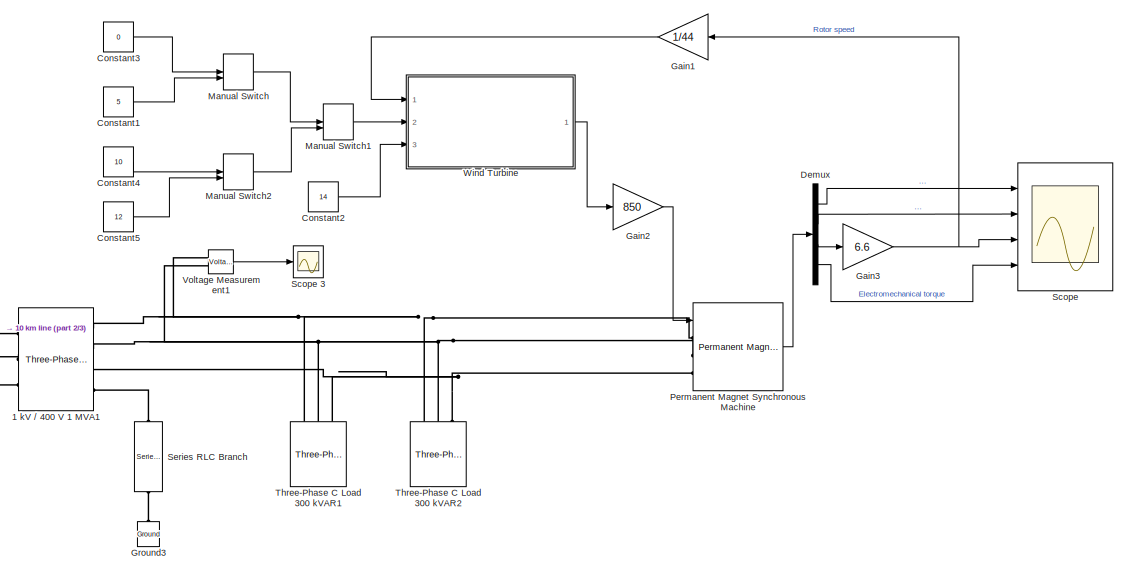
[diagram: root canvas - part 1/3, top right region]
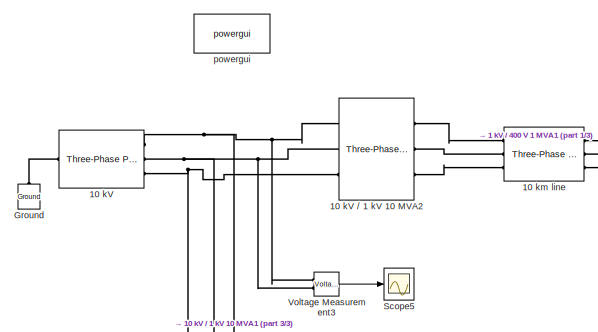
[diagram: root canvas - part 2/3, middle left region]
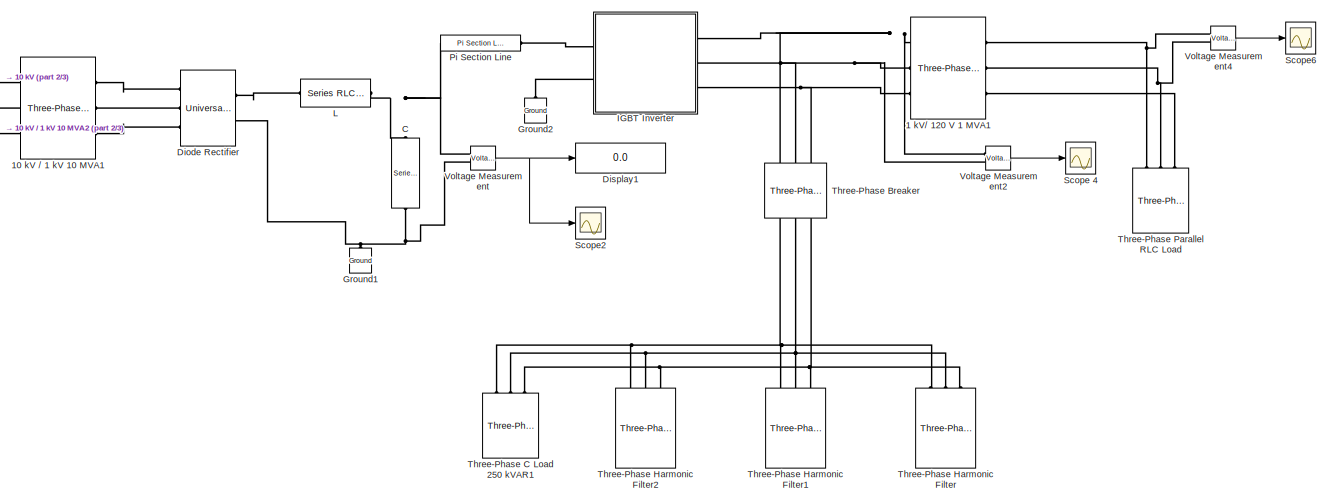
[diagram: root canvas - part 3/3, full width, bottom band]
MODEL slx_c93691e027c2
KIND model
BLOCK [Reference] 1 kV // 400 V 1 MVA1  REF=powerlib/Elements/Three-Phase
Transformer
(Two Windings)
  BreakLoop = off
  DataFile = 'hysteresis'
  DataType = on
  Hysteresis = off
  InitialFluxes = [1.5802 -1.5802 1.3827]
  Lm = 1.8386
  Measurements = None
  MoreParameters = off
  NominalPower = [ 1000e3, 50 ]
  Ports = [0, 0, 0, 0, 0, 3, 4]
  Rm = 577.6
  Saturation = [0 0;1.2892 2.3703;537.17 3.0024]
  SetInitialFlux = off
  SetSaturation = off
  SourceBlock = powerlib/Elements/Three-Phase\nTransformer\n(Two Windings)
  SourceType = Three-Phase Transformer (Two Windings)
  TransfoNumber = 1
  UNITS = SI
  Winding1 = [1000 0.0023104 0.00029417]
  Winding1Connection = Y
  Winding2 = [400 0.0017328 0.00022063]
  Winding2Connection = Yn
BLOCK [Reference] 1 kV// 120 V 1 MVA1  REF=powerlib/Elements/Three-Phase
Transformer
(Two Windings)
  BreakLoop = off
  DataFile = 'hysteresis'
  DataType = on
  Hysteresis = off
  InitialFluxes = [13.723 -13.723 12.007]
  Lm = 69.328
  Measurements = None
  MoreParameters = off
  NominalPower = [ 1000000, 50 ]
  Ports = [0, 0, 0, 0, 0, 3, 3]
  Rm = 21780
  Saturation = [0 0;0.29691 20.584;123.71 26.073]
  SetInitialFlux = off
  SetSaturation = off
  SourceBlock = powerlib/Elements/Three-Phase\nTransformer\n(Two Windings)
  SourceType = Three-Phase Transformer (Two Windings)
  TransfoNumber = 1
  UNITS = SI
  Winding1 = [1000 0.08712 0.011092]
  Winding1Connection = Yg
  Winding2 = [120 0.0008664 0.00011031]
  Winding2Connection = Y
BLOCK [Reference] 10 kV  REF=powerlib/Electrical
Sources/Three-Phase
Programmable
Voltage Source
  Amplitudes = [1 0.8 1.2 1.0]
  BusType = swing
  HarmonicA = [3 0.2 -25 0]
  HarmonicB = [2 0.15 35 2]
  HarmonicGeneration = off
  Ports = [0, 0, 0, 0, 0, 1, 3]
  PositiveSequence = [10000  0 50]
  Pref = 0
  Qmax = inf
  Qmin = -inf
  Qref = 0
  SourceBlock = powerlib/Electrical\nSources/Three-Phase\nProgrammable\nVoltage Source
  SourceType = Three-Phase Programmable Voltage Source
  TimeValues = [0 0.1 0.15 0.2]
  Timing = [0.05  3]
  VariationEntity = None
  VariationFrequency = 2
  VariationMagnitude = 0.3
  VariationPhaseA = off
  VariationRate = 10
  VariationStep = 0.5
  VariationTiming = [1 2]
  VariationType = Table of time-amplitude pairs
  VariationTypeAlt = Step
BLOCK [Reference] 10 kV // 1 kV 10 MVA1  REF=powerlib/Elements/Three-Phase
Transformer
(Two Windings)
  BreakLoop = off
  DataFile = 'hysteresis'
  DataType = on
  Hysteresis = off
  InitialFluxes = [1.5802 -1.5802 1.3827]
  Lm = 1.8386
  Measurements = None
  MoreParameters = off
  NominalPower = [ 10e6, 50 ]
  Ports = [0, 0, 0, 0, 0, 3, 3]
  Rm = 577.6
  Saturation = [0 0;1.2892 2.3703;537.17 3.0024]
  SetInitialFlux = off
  SetSaturation = off
  SourceBlock = powerlib/Elements/Three-Phase\nTransformer\n(Two Windings)
  SourceType = Three-Phase Transformer (Two Windings)
  TransfoNumber = 1
  UNITS = SI
  Winding1 = [10000 0.0023104 0.00029417]
  Winding1Connection = Y
  Winding2 = [1000 0.0017328 0.00022063]
  Winding2Connection = Y
BLOCK [Reference] 10 kV // 1 kV 10 MVA2  REF=powerlib/Elements/Three-Phase
Transformer
(Two Windings)
  BreakLoop = off
  DataFile = 'hysteresis'
  DataType = on
  Hysteresis = off
  InitialFluxes = [1.5802 -1.5802 1.3827]
  Lm = 1.8386
  Measurements = None
  MoreParameters = off
  NominalPower = [ 10e6, 50 ]
  Ports = [0, 0, 0, 0, 0, 3, 3]
  Rm = 577.6
  Saturation = [0 0;1.2892 2.3703;537.17 3.0024]
  SetInitialFlux = off
  SetSaturation = off
  SourceBlock = powerlib/Elements/Three-Phase\nTransformer\n(Two Windings)
  SourceType = Three-Phase Transformer (Two Windings)
  TransfoNumber = 1
  UNITS = SI
  Winding1 = [10000 0.0023104 0.00029417]
  Winding1Connection = Y
  Winding2 = [1000 0.0017328 0.00022063]
  Winding2Connection = Y
BLOCK [Reference] 10 km line   REF=powerlib/Elements/Three-Phase
PI Section Line
  AttributesFormatString = \n
  Capacitances = [12.74e-9 7.751e-9]
  Frequency = 50
  Inductances = [ 0.9337e-3  4.1264e-3]
  LConnTagsString = a|b|c
  Length = 100
  Ports = [0, 0, 0, 0, 0, 3, 3]
  RConnTagsString = A|B|C
  Resistances = [ 0.01273 0.3864]
  SourceBlock = powerlib/Elements/Three-Phase\nPI Section Line
  SourceType = Three-Phase PI Section Line
BLOCK [Reference] C  REF=powerlib/Elements/Series RLC Branch
  BranchType = C
  Capacitance = 0.01
  Inductance = 1e-3
  InitialCurrent = 0
  InitialVoltage = 0
  LConnTagsString = __new0
  Measurements = None
  Ports = [0, 0, 0, 0, 0, 1, 1]
  RConnTagsString = __new0
  Resistance = 1
  SetiL0 = off
  Setx0 = off
  SourceBlock = powerlib/Elements/Series RLC Branch
  SourceType = Series RLC Branch
BLOCK [Constant] Constant1
  Value = 5
BLOCK [Constant] Constant2
  Value = 14
BLOCK [Constant] Constant3
  Value = 0
BLOCK [Constant] Constant4
  Value = 10
BLOCK [Constant] Constant5
  Value = 12
BLOCK [Demux] Demux
  DisplayOption = bar
  Ports = [1, 4]
BLOCK [Reference] Diode Rectifier  REF=powerlib/Power
Electronics/Universal Bridge
  Arms = 3
  Device = Diodes
  ForwardVoltage = 0
  ForwardVoltages = [  0  0  ]
  GTOparameters = [ 10e-6 , 20e-6 ]
  IGBTparameters = [ 1e-6 , 2e-6 ]
  Lon = 0
  Measurements = None
  Measurements_2 = None
  Ports = [0, 0, 0, 0, 0, 3, 2]
  Ron = 1e-3
  SnubberCapacitance = inf
  SnubberResistance = 1e5
  SourceBlock = powerlib/Power\nElectronics/Universal Bridge
  SourceType = Universal Bridge
  converterType = Rectifier
BLOCK [Display] Display1
  Decimation = 1
  Lockdown = off
  Ports = [1]
BLOCK [Gain] Gain1
  Gain = 1/44
  OutDataTypeStr = Inherit: Inherit via internal rule
  ParamDataTypeStr = Inherit: Inherit via internal rule
  SaturateOnIntegerOverflow = off
BLOCK [Gain] Gain2
  Gain = 850
  OutDataTypeStr = Inherit: Inherit via internal rule
  ParamDataTypeStr = Inherit: Inherit via internal rule
  SaturateOnIntegerOverflow = off
BLOCK [Gain] Gain3
  Gain = 6.6
  OutDataTypeStr = Inherit: Inherit via internal rule
  ParamDataTypeStr = Inherit: Inherit via internal rule
  SaturateOnIntegerOverflow = off
BLOCK [Reference] Ground  REF=powerlib/Elements/Ground
  LConnTagsString = a
  Ports = [0, 0, 0, 0, 0, 1]
  SourceBlock = powerlib/Elements/Ground
  SourceType = Ground
BLOCK [Reference] Ground1  REF=powerlib/Elements/Ground
  LConnTagsString = a
  Ports = [0, 0, 0, 0, 0, 1]
  SourceBlock = powerlib/Elements/Ground
  SourceType = Ground
BLOCK [Reference] Ground2  REF=powerlib/Elements/Ground
  LConnTagsString = a
  Ports = [0, 0, 0, 0, 0, 1]
  SourceBlock = powerlib/Elements/Ground
  SourceType = Ground
BLOCK [Reference] Ground3  REF=powerlib/Elements/Ground
  LConnTagsString = a
  Ports = [0, 0, 0, 0, 0, 1]
  SourceBlock = powerlib/Elements/Ground
  SourceType = Ground
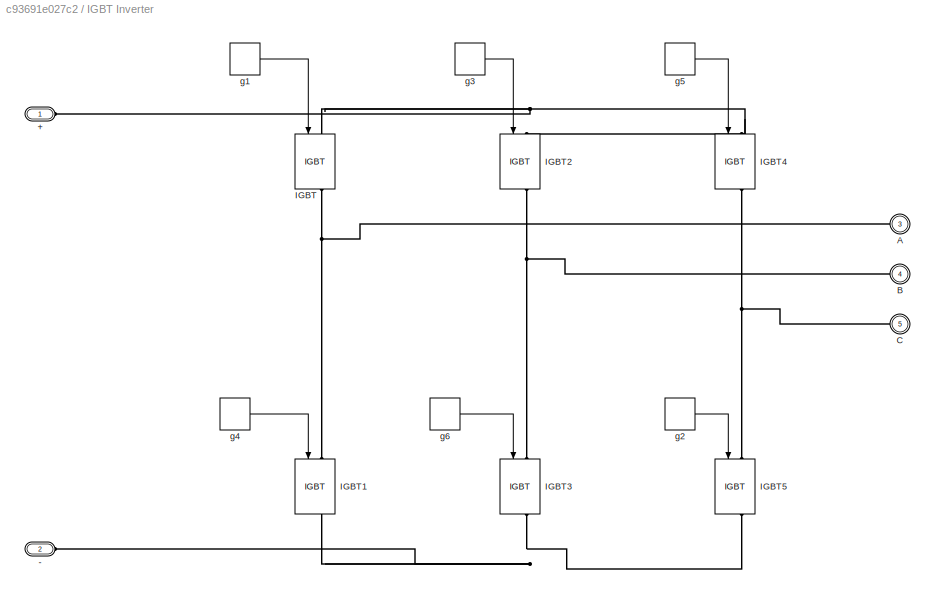
BLOCK [SubSystem] IGBT Inverter
  FunctionWithSeparateData = off
  MaskHideContents = off
  MinAlgLoopOccurrences = off
  Opaque = off
  Ports = [0, 0, 0, 0, 0, 2, 3]
  PropExecContextOutsideSubsystem = off
  RTWSystemCode = Auto
  RequestExecContextInheritance = off
BLOCK [PMIOPort] IGBT Inverter/+
  Port = 1
  Side = Left
BLOCK [PMIOPort] IGBT Inverter/-
  Port = 2
  Side = Left
BLOCK [PMIOPort] IGBT Inverter/A
  Port = 3
  Side = Right
BLOCK [PMIOPort] IGBT Inverter/B
  Port = 4
  Side = Right
BLOCK [PMIOPort] IGBT Inverter/C
  Port = 5
  Side = Right
BLOCK [Reference] IGBT Inverter/IGBT  REF=powerlib/Power
Electronics/IGBT
  Cs = inf
  IC = 0
  Lon = 0
  Measurements = on
  Ports = [1, 1, 0, 0, 0, 1, 1]
  Ron = 0.001
  Rs = 1e5
  SourceBlock = powerlib/Power\nElectronics/IGBT
  SourceType = IGBT
  Tf = 1e-6
  Tt = 2e-6
  Vf = 1
BLOCK [Reference] IGBT Inverter/IGBT1  REF=powerlib/Power
Electronics/IGBT
  Cs = inf
  IC = 0
  Lon = 0
  Measurements = on
  Ports = [1, 1, 0, 0, 0, 1, 1]
  Ron = 0.001
  Rs = 1e5
  SourceBlock = powerlib/Power\nElectronics/IGBT
  SourceType = IGBT
  Tf = 1e-6
  Tt = 2e-6
  Vf = 1
BLOCK [Reference] IGBT Inverter/IGBT2  REF=powerlib/Power
Electronics/IGBT
  Cs = inf
  IC = 0
  Lon = 0
  Measurements = on
  Ports = [1, 1, 0, 0, 0, 1, 1]
  Ron = 0.001
  Rs = 1e5
  SourceBlock = powerlib/Power\nElectronics/IGBT
  SourceType = IGBT
  Tf = 1e-6
  Tt = 2e-6
  Vf = 1
BLOCK [Reference] IGBT Inverter/IGBT3  REF=powerlib/Power
Electronics/IGBT
  Cs = inf
  IC = 0
  Lon = 0
  Measurements = on
  Ports = [1, 1, 0, 0, 0, 1, 1]
  Ron = 0.001
  Rs = 1e5
  SourceBlock = powerlib/Power\nElectronics/IGBT
  SourceType = IGBT
  Tf = 1e-6
  Tt = 2e-6
  Vf = 1
BLOCK [Reference] IGBT Inverter/IGBT4  REF=powerlib/Power
Electronics/IGBT
  Cs = inf
  IC = 0
  Lon = 0
  Measurements = on
  Ports = [1, 1, 0, 0, 0, 1, 1]
  Ron = 0.001
  Rs = 1e5
  SourceBlock = powerlib/Power\nElectronics/IGBT
  SourceType = IGBT
  Tf = 1e-6
  Tt = 2e-6
  Vf = 1
BLOCK [Reference] IGBT Inverter/IGBT5  REF=powerlib/Power
Electronics/IGBT
  Cs = inf
  IC = 0
  Lon = 0
  Measurements = on
  Ports = [1, 1, 0, 0, 0, 1, 1]
  Ron = 0.001
  Rs = 1e5
  SourceBlock = powerlib/Power\nElectronics/IGBT
  SourceType = IGBT
  Tf = 1e-6
  Tt = 2e-6
  Vf = 1
BLOCK [DiscretePulseGenerator] IGBT Inverter/g1
  Period = 0.02
  Ports = [0, 1]
  PulseType = Time based
  PulseWidth = 50
BLOCK [DiscretePulseGenerator] IGBT Inverter/g2
  Period = 0.02
  PhaseDelay = 0.0033
  Ports = [0, 1]
  PulseType = Time based
  PulseWidth = 50
BLOCK [DiscretePulseGenerator] IGBT Inverter/g3
  Period = 0.02
  PhaseDelay = 0.0067
  Ports = [0, 1]
  PulseType = Time based
  PulseWidth = 50
BLOCK [DiscretePulseGenerator] IGBT Inverter/g4
  Period = 0.02
  PhaseDelay = 0.01
  Ports = [0, 1]
  PulseType = Time based
  PulseWidth = 50
BLOCK [DiscretePulseGenerator] IGBT Inverter/g5
  Period = 0.02
  PhaseDelay = 0.0133
  Ports = [0, 1]
  PulseType = Time based
  PulseWidth = 50
BLOCK [DiscretePulseGenerator] IGBT Inverter/g6
  Period = 0.02
  PhaseDelay = 0.0167
  Ports = [0, 1]
  PulseType = Time based
  PulseWidth = 50
BLOCK [Reference] L  REF=powerlib/Elements/Series RLC Branch
  BranchType = L
  Capacitance = 1e-6
  Inductance = 3.8e-3
  InitialCurrent = 0
  InitialVoltage = 0
  LConnTagsString = __new0
  Measurements = None
  Ports = [0, 0, 0, 0, 0, 1, 1]
  RConnTagsString = __new0
  Resistance = 1
  SetiL0 = off
  Setx0 = off
  SourceBlock = powerlib/Elements/Series RLC Branch
  SourceType = Series RLC Branch
BLOCK [ManualSwitch] Manual Switch
  CurrentSetting = 0
BLOCK [ManualSwitch] Manual Switch1
BLOCK [ManualSwitch] Manual Switch2
  CurrentSetting = 0
BLOCK [Reference] Permanent Magnet Synchronous Machine  REF=powerlib/Machines/Permanent Magnet
Synchronous Machine
  Flat = 120
  Flux = 0.1688
  FluxDistribution = Sinusoidal
  Inductance = 8.5e-3
  InitialConditions = [0,0, 0,0]
  InitialConditions5ph = [0 0 0 0 0 0]
  La = 0.000975
  MachineConstant = Flux linkage established by magnets (V.s)
  Mechanical = [0.003945 0.0004924 4 0]
  MechanicalLoad = Torque Tm
  NbPhases = 3
  PolePairs = 4
  Ports = [1, 1, 0, 0, 0, 3]
  PresetModel = No
  RefAngle = 90 degrees behind phase A axis (modified Park)
  Resistance = 0.0918
  RotorType = Round
  ShowDetailedParameters = on
  SourceBlock = powerlib/Machines/Permanent Magnet\nSynchronous Machine
  SourceType = Permanent Magnet Synchronous Machine
  TorqueCst = 1.0128
  TsBlock = -1
  TsPowergui = 0
  VoltageCst = 122.4677
  dqInductances = [8.5e-3,8.5e-3]
BLOCK [Reference] Pi Section Line  REF=powerlib/Elements/Pi Section Line
  AttributesFormatString = \n
  Capacitance = 12.74e-9
  Frequency = 50
  Inductance = 0.9337e-3
  LConnTagsString = __new0
  Length = 10
  Measurements = None
  PiSections = 1
  Ports = [0, 0, 0, 0, 0, 1, 1]
  RConnTagsString = __new0
  Resistance = 0.01273
  SourceBlock = powerlib/Elements/Pi Section Line
  SourceType = Pi Section Line
BLOCK [Scope] Scope
  DataFormat = StructureWithTime
  Floating = off
  LimitDataPoints = off
  NumInputPorts = 4
  Ports = [4]
  SampleTime = 0
  ShowLegends = off
  YMax = 50000~100000~5~5
  YMin = -50000~-100000~-5~-5
BLOCK [Scope] Scope 3
  DataFormat = StructureWithTime
  Floating = off
  LimitDataPoints = off
  NumInputPorts = 1
  Ports = [1]
  SampleTime = 0
  SaveName = ScopeData3
  ShowLegends = off
BLOCK [Scope] Scope 4
  DataFormat = StructureWithTime
  Floating = off
  LimitDataPoints = off
  NumInputPorts = 1
  Ports = [1]
  SampleTime = 0
  SaveName = ScopeData4
  ShowLegends = off
BLOCK [Scope] Scope2
  DataFormat = StructureWithTime
  Floating = off
  LimitDataPoints = off
  NumInputPorts = 1
  Ports = [1]
  SampleTime = 0
  SaveName = ScopeData2
  ShowLegends = off
BLOCK [Scope] Scope5
  DataFormat = StructureWithTime
  Floating = off
  LimitDataPoints = off
  NumInputPorts = 1
  Ports = [1]
  SampleTime = 0
  SaveName = ScopeData5
  ShowLegends = off
BLOCK [Scope] Scope6
  DataFormat = StructureWithTime
  Floating = off
  LimitDataPoints = off
  NumInputPorts = 1
  Ports = [1]
  SampleTime = 0
  SaveName = ScopeData6
  ShowLegends = off
BLOCK [Reference] Series RLC Branch  REF=powerlib/Elements/Series RLC Branch
  BranchType = R
  Capacitance = 1e-6
  Inductance = 1e-3
  InitialCurrent = 0
  InitialVoltage = 0
  LConnTagsString = __new0
  Measurements = None
  Ports = [0, 0, 0, 0, 0, 1, 1]
  RConnTagsString = __new0
  Resistance = 66
  SetiL0 = off
  Setx0 = off
  SourceBlock = powerlib/Elements/Series RLC Branch
  SourceType = Series RLC Branch
BLOCK [Reference] Three-Phase Breaker  REF=powerlib/Elements/Three-Phase Breaker
  BreakerResistance = 0.001
  External = off
  InitialState = closed
  Measurements = None
  Ports = [0, 0, 0, 0, 0, 3, 3]
  SnubberCapacitance = inf
  SnubberResistance = 1e6
  SourceBlock = powerlib/Elements/Three-Phase Breaker
  SourceType = Three-Phase Breaker
  SwitchA = on
  SwitchB = on
  SwitchC = on
  SwitchTimes = [4/60  10/60]
BLOCK [Reference] Three-Phase C Load 250 kVAR1  REF=powerlib/Elements/Three-Phase
Series RLC Load
  ActivePower = 0
  AttributesFormatString = \n
  CapacitivePower = 500000
  Configuration = Y (grounded)
  InductivePower = 0
  LConnTagsString = A|B|C
  LoadType = constant Z
  Measurements = None
  NominalFrequency = 50
  NominalVoltage = 1000
  Ports = [0, 0, 0, 0, 0, 3]
  SourceBlock = powerlib/Elements/Three-Phase\nSeries RLC Load
  SourceType = Three-Phase Series RLC Load
BLOCK [Reference] Three-Phase C Load 300 kVAR1  REF=powerlib/Elements/Three-Phase
Series RLC Load
  ActivePower = 0
  AttributesFormatString = \n
  CapacitivePower = 300e3
  Configuration = Y (floating)
  InductivePower = 0
  LConnTagsString = A|B|C
  LoadType = constant Z
  Measurements = None
  NominalFrequency = 50
  NominalVoltage = 380
  Ports = [0, 0, 0, 0, 0, 3]
  SourceBlock = powerlib/Elements/Three-Phase\nSeries RLC Load
  SourceType = Three-Phase Series RLC Load
BLOCK [Reference] Three-Phase C Load 300 kVAR2  REF=powerlib/Elements/Three-Phase
Series RLC Load
  ActivePower = 0
  AttributesFormatString = \n
  CapacitivePower = 300e3
  Configuration = Y (floating)
  InductivePower = 0
  LConnTagsString = A|B|C
  LoadType = constant Z
  Measurements = None
  NominalFrequency = 50
  NominalVoltage = 380
  Ports = [0, 0, 0, 0, 0, 3]
  SourceBlock = powerlib/Elements/Three-Phase\nSeries RLC Load
  SourceType = Three-Phase Series RLC Load
BLOCK [Reference] Three-Phase Harmonic Filter  REF=powerlib/Elements/Three-Phase
Harmonic Filter
  AttributesFormatString = \n
  FilterConnection = Y (grounded)
  FilterType = Double-tuned
  Fr = [5*60]
  Frd = [11*50 13*50]
  LConnTagsString = A|B|C
  Measurements = None
  ParNom = [1000 50]
  Ports = [0, 0, 0, 0, 0, 3]
  Q = 16
  Qc = 500000
  SourceBlock = powerlib/Elements/Three-Phase\nHarmonic Filter
  SourceType = Three-Phase Harmonic Filter
BLOCK [Reference] Three-Phase Harmonic Filter1  REF=powerlib/Elements/Three-Phase
Harmonic Filter
  AttributesFormatString = \n
  FilterConnection = Y (grounded)
  FilterType = C-type High-pass
  Fr = [3*50]
  Frd = [11*50 13*50]
  LConnTagsString = A|B|C
  Measurements = None
  ParNom = [1000 50]
  Ports = [0, 0, 0, 0, 0, 3]
  Q = 16
  Qc = 500000
  SourceBlock = powerlib/Elements/Three-Phase\nHarmonic Filter
  SourceType = Three-Phase Harmonic Filter
BLOCK [Reference] Three-Phase Harmonic Filter2  REF=powerlib/Elements/Three-Phase
Harmonic Filter
  AttributesFormatString = \n
  FilterConnection = Y (grounded)
  FilterType = High-pass
  Fr = [24*50]
  Frd = [11*50 13*50]
  LConnTagsString = A|B|C
  Measurements = None
  ParNom = [1000 50]
  Ports = [0, 0, 0, 0, 0, 3]
  Q = 16
  Qc = 500000
  SourceBlock = powerlib/Elements/Three-Phase\nHarmonic Filter
  SourceType = Three-Phase Harmonic Filter
BLOCK [Reference] Three-Phase Parallel RLC Load  REF=powerlib/Elements/Three-Phase
Parallel RLC Load
  ActivePower = 50e3
  AttributesFormatString = \n
  CapacitivePower = 500
  Configuration = Y (grounded)
  InductivePower = 600
  LConnTagsString = A|B|C
  LoadType = constant Z
  Measurements = None
  NominalFrequency = 50
  NominalVoltage = 380
  Ports = [0, 0, 0, 0, 0, 3]
  SourceBlock = powerlib/Elements/Three-Phase\nParallel RLC Load
  SourceType = Three-Phase Parallel RLC Load
BLOCK [Reference] Voltage Measurement  REF=powerlib/Measurements/Voltage Measurement
  OutputType = Complex
  PSBequivalent = 0
  PhasorSimulation = off
  Ports = [0, 1, 0, 0, 0, 2]
  SourceBlock = powerlib/Measurements/Voltage Measurement
  SourceType = Voltage Measurement
BLOCK [Reference] Voltage Measurement1  REF=powerlib/Measurements/Voltage Measurement
  OutputType = Complex
  PSBequivalent = 0
  PhasorSimulation = off
  Ports = [0, 1, 0, 0, 0, 2]
  SourceBlock = powerlib/Measurements/Voltage Measurement
  SourceType = Voltage Measurement
BLOCK [Reference] Voltage Measurement2  REF=powerlib/Measurements/Voltage Measurement
  OutputType = Complex
  PSBequivalent = 0
  PhasorSimulation = off
  Ports = [0, 1, 0, 0, 0, 2]
  SourceBlock = powerlib/Measurements/Voltage Measurement
  SourceType = Voltage Measurement
BLOCK [Reference] Voltage Measurement3  REF=powerlib/Measurements/Voltage Measurement
  OutputType = Complex
  PSBequivalent = 0
  PhasorSimulation = off
  Ports = [0, 1, 0, 0, 0, 2]
  SourceBlock = powerlib/Measurements/Voltage Measurement
  SourceType = Voltage Measurement
BLOCK [Reference] Voltage Measurement4  REF=powerlib/Measurements/Voltage Measurement
  OutputType = Complex
  PSBequivalent = 0
  PhasorSimulation = off
  Ports = [0, 1, 0, 0, 0, 2]
  SourceBlock = powerlib/Measurements/Voltage Measurement
  SourceType = Voltage Measurement
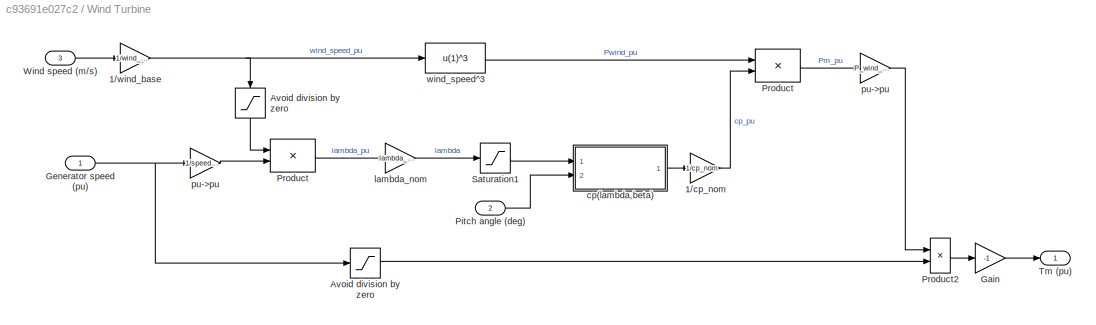
BLOCK [SubSystem] Wind Turbine
  DialogController = POWERSYS.PowerSysDialog
  FunctionWithSeparateData = off
  MaskHideContents = off
  MinAlgLoopOccurrences = off
  Opaque = off
  Ports = [3, 1]
  PropExecContextOutsideSubsystem = off
  RTWSystemCode = Auto
  RequestExecContextInheritance = off
BLOCK [Gain] Wind Turbine/1//cp_nom
  Gain = 1/cp_nom
BLOCK [Gain] Wind Turbine/1//wind_base
  Gain = 1/wind_base
BLOCK [Saturate] Wind Turbine/Avoid division by zero
  InputPortMap = u0
  LowerLimit = 1e-6
  Ports = [1, 1]
  UpperLimit = 1e6
BLOCK [Saturate] Wind Turbine/Avoid division by zero 
  InputPortMap = u0
  LowerLimit = 1e-6
  Ports = [1, 1]
  UpperLimit = 1e6
BLOCK [Gain] Wind Turbine/Gain
  Gain = -1
BLOCK [Inport] Wind Turbine/Generator speed (pu)
  IconDisplay = Port number
BLOCK [Inport] Wind Turbine/Pitch angle (deg)
  IconDisplay = Port number
  Port = 2
BLOCK [Product] Wind Turbine/Product
  InputSameDT = off
  Inputs = /*
  Ports = [2, 1]
  RndMeth = Floor
BLOCK [Product] Wind Turbine/Product 
  InputSameDT = off
  Ports = [2, 1]
  RndMeth = Floor
BLOCK [Product] Wind Turbine/Product2
  Inputs = */
  Ports = [2, 1]
  RndMeth = Floor
BLOCK [Saturate] Wind Turbine/Saturation1
  InputPortMap = u0
  LowerLimit = 1e-6
  Ports = [1, 1]
  UpperLimit = inf
BLOCK [Outport] Wind Turbine/Tm (pu)
  IconDisplay = Port number
BLOCK [Inport] Wind Turbine/Wind speed (m//s)
  IconDisplay = Port number
  Port = 3
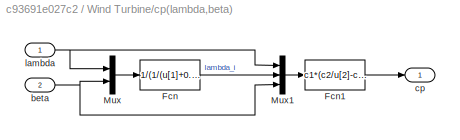
BLOCK [SubSystem] Wind Turbine/cp(lambda,beta)
  FunctionWithSeparateData = off
  MaskHideContents = off
  MinAlgLoopOccurrences = off
  Opaque = off
  Ports = [2, 1]
  PropExecContextOutsideSubsystem = off
  RTWSystemCode = Auto
  RequestExecContextInheritance = off
BLOCK [Fcn] Wind Turbine/cp(lambda,beta)/Fcn
  Expr = 1/(1/(u[1]+0.08*u[2])-0.035/(u[2]^3+1))
BLOCK [Fcn] Wind Turbine/cp(lambda,beta)/Fcn1
  Expr = c1*(c2/u[2]-c3*u[3]-c4)*exp(-c5/u[2])+c6*u[1]
BLOCK [Mux] Wind Turbine/cp(lambda,beta)/Mux
  DisplayOption = bar
  Inputs = 2
  Ports = [2, 1]
BLOCK [Mux] Wind Turbine/cp(lambda,beta)/Mux1
  DisplayOption = bar
  Inputs = 3
  Ports = [3, 1]
BLOCK [Inport] Wind Turbine/cp(lambda,beta)/beta
  IconDisplay = Port number
  Port = 2
BLOCK [Outport] Wind Turbine/cp(lambda,beta)/cp
  IconDisplay = Port number
BLOCK [Inport] Wind Turbine/cp(lambda,beta)/lambda
  IconDisplay = Port number
BLOCK [Gain] Wind Turbine/lambda_nom
  Gain = lambda_nom
BLOCK [Gain] Wind Turbine/pu->pu
  Gain = P_wind_base*Pnom/Pelec_base
BLOCK [Gain] Wind Turbine/pu->pu 
  Gain = 1/speed_nom
BLOCK [Fcn] Wind Turbine/wind_speed^3
  Expr = u(1)^3
BLOCK [Reference] powergui  REF=powerlib/powergui
  DisableRonSwitches = off
  DisableSnubberDevices = off
  DisableVfSwitches = off
  DisplayEquations = off
  DisplayStyle = 1
  EnableUseOfTLC = off
  ErrMax = 1e-4
  Frange = [0:2:500]
  FreqAxis = off
  FunctionMessages = on
  HookPort = off
  Interpol = off
  Iterations = 50
  MaxFrequency = 1000
  Pbase = 100e6
  Ports = []
  Priority = 1
  ResistiveCurrentMeasurement = off
  RestoreLinks = warning
  RmsSteady = 1
  SPID = off
  SampleTime = 250e-6
  ShowGrid = off
  SolverType = Tustin
  SourceBlock = powerlib/powergui
  SourceType = PSB option menu block
  StartTime = 0.0
  SwTol = 0
  Ts = 0
  UnitsV = kV
  UnitsW = MW
  UserDataPersistent = on
  Xlog = on
  Ylog = off
  ZoomFFT = off
  cycles = 1
  display = off
  echomessages = off
  frequency = 60
  frequencyindice = 50
  frequencyindicesteady = 1
  fundamental = 60
  methode = off
  save = off
  variable = ZData
  x0status = blocks
LINE Constant1:1 -> Manual Switch:2
LINE Constant2:1 -> Wind Turbine:3
LINE Constant3:1 -> Manual Switch:1
LINE Constant4:1 -> Manual Switch2:1
LINE Constant5:1 -> Manual Switch2:2
LINE Demux:1 -> Scope:1
LINE Demux:2 -> Scope:2
LINE Demux:3 -> Gain3:1
LINE Demux:4 -> Scope:4
LINE Gain1:1 -> Wind Turbine:1
LINE Gain2:1 -> Permanent Magnet Synchronous Machine:1
NET Gain3:1 -> Gain1:1, Scope:3
LINE IGBT Inverter/g1:1 -> IGBT Inverter/IGBT:1
LINE IGBT Inverter/g2:1 -> IGBT Inverter/IGBT5:1
LINE IGBT Inverter/g3:1 -> IGBT Inverter/IGBT2:1
LINE IGBT Inverter/g4:1 -> IGBT Inverter/IGBT1:1
LINE IGBT Inverter/g5:1 -> IGBT Inverter/IGBT4:1
LINE IGBT Inverter/g6:1 -> IGBT Inverter/IGBT3:1
LINE Manual Switch1:1 -> Wind Turbine:2
LINE Manual Switch2:1 -> Manual Switch1:2
LINE Manual Switch:1 -> Manual Switch1:1
LINE Permanent Magnet Synchronous Machine:1 -> Demux:1
LINE Voltage Measurement1:1 -> Scope 3:1
LINE Voltage Measurement2:1 -> Scope 4:1
LINE Voltage Measurement3:1 -> Scope5:1
LINE Voltage Measurement4:1 -> Scope6:1
NET Voltage Measurement:1 -> Display1:1, Scope2:1
LINE Wind Turbine:1 -> Gain2:1
PLINE 1 kV // 400 V 1 MVA1:LConn1 -- 10 km line :RConn1
PLINE 1 kV // 400 V 1 MVA1:LConn2 -- 10 km line :RConn2
PLINE 1 kV // 400 V 1 MVA1:LConn3 -- 10 km line :RConn3
PNET net1: 1 kV // 400 V 1 MVA1:RConn1 -- Permanent Magnet Synchronous Machine:LConn1 -- Three-Phase C Load 300 kVAR1:LConn1 -- Three-Phase C Load 300 kVAR2:LConn1 -- Voltage Measurement1:LConn1
PNET net2: 1 kV // 400 V 1 MVA1:RConn2 -- Permanent Magnet Synchronous Machine:LConn2 -- Three-Phase C Load 300 kVAR1:LConn2 -- Three-Phase C Load 300 kVAR2:LConn2 -- Voltage Measurement1:LConn2
PNET net3: 1 kV // 400 V 1 MVA1:RConn3 -- Permanent Magnet Synchronous Machine:LConn3 -- Three-Phase C Load 300 kVAR1:LConn3 -- Three-Phase C Load 300 kVAR2:LConn3
PLINE 1 kV // 400 V 1 MVA1:RConn4 -- Series RLC Branch:LConn1
PNET net4: 1 kV// 120 V 1 MVA1:LConn1 -- IGBT Inverter:RConn1 -- Three-Phase Breaker:LConn1 -- Voltage Measurement2:LConn1
PNET net5: 1 kV// 120 V 1 MVA1:LConn2 -- IGBT Inverter:RConn2 -- Three-Phase Breaker:LConn2 -- Voltage Measurement2:LConn2
PNET net6: 1 kV// 120 V 1 MVA1:LConn3 -- IGBT Inverter:RConn3 -- Three-Phase Breaker:LConn3
PNET net7: 1 kV// 120 V 1 MVA1:RConn1 -- Three-Phase Parallel RLC Load:LConn1 -- Voltage Measurement4:LConn1
PNET net8: 1 kV// 120 V 1 MVA1:RConn2 -- Three-Phase Parallel RLC Load:LConn2 -- Voltage Measurement4:LConn2
PLINE 1 kV// 120 V 1 MVA1:RConn3 -- Three-Phase Parallel RLC Load:LConn3
PNET net9: 10 kV // 1 kV 10 MVA1:LConn1 -- 10 kV // 1 kV 10 MVA2:LConn1 -- 10 kV:RConn1 -- Voltage Measurement3:LConn1
PNET net10: 10 kV // 1 kV 10 MVA1:LConn2 -- 10 kV // 1 kV 10 MVA2:LConn2 -- 10 kV:RConn2 -- Voltage Measurement3:LConn2
PNET net11: 10 kV // 1 kV 10 MVA1:LConn3 -- 10 kV // 1 kV 10 MVA2:LConn3 -- 10 kV:RConn3
PLINE 10 kV // 1 kV 10 MVA1:RConn1 -- Diode Rectifier:LConn1
PLINE 10 kV // 1 kV 10 MVA1:RConn2 -- Diode Rectifier:LConn2
PLINE 10 kV // 1 kV 10 MVA1:RConn3 -- Diode Rectifier:LConn3
PLINE 10 kV // 1 kV 10 MVA2:RConn1 -- 10 km line :LConn1
PLINE 10 kV // 1 kV 10 MVA2:RConn2 -- 10 km line :LConn2
PLINE 10 kV // 1 kV 10 MVA2:RConn3 -- 10 km line :LConn3
PLINE 10 kV:LConn1 -- Ground:LConn1
PNET net12: C:LConn1 -- L:RConn1 -- Pi Section Line:LConn1 -- Voltage Measurement:LConn1
PNET net13: C:RConn1 -- Diode Rectifier:RConn2 -- Ground1:LConn1 -- Voltage Measurement:LConn2
PLINE Diode Rectifier:RConn1 -- L:LConn1
PLINE Ground2:LConn1 -- IGBT Inverter:LConn2
PLINE Ground3:LConn1 -- Series RLC Branch:RConn1
PNET net14: IGBT Inverter/+:RConn1 -- IGBT Inverter/IGBT2:LConn1 -- IGBT Inverter/IGBT4:LConn1 -- IGBT Inverter/IGBT:LConn1
PNET net15: IGBT Inverter/-:RConn1 -- IGBT Inverter/IGBT1:RConn1 -- IGBT Inverter/IGBT3:RConn1 -- IGBT Inverter/IGBT5:RConn1
PNET net16: IGBT Inverter/A:RConn1 -- IGBT Inverter/IGBT1:LConn1 -- IGBT Inverter/IGBT:RConn1
PNET net17: IGBT Inverter/B:RConn1 -- IGBT Inverter/IGBT2:RConn1 -- IGBT Inverter/IGBT3:LConn1
PNET net18: IGBT Inverter/C:RConn1 -- IGBT Inverter/IGBT4:RConn1 -- IGBT Inverter/IGBT5:LConn1
PLINE IGBT Inverter:LConn1 -- Pi Section Line:RConn1
PNET net19: Three-Phase Breaker:RConn1 -- Three-Phase C Load 250 kVAR1:LConn1 -- Three-Phase Harmonic Filter1:LConn1 -- Three-Phase Harmonic Filter2:LConn1 -- Three-Phase Harmonic Filter:LConn1
PNET net20: Three-Phase Breaker:RConn2 -- Three-Phase C Load 250 kVAR1:LConn2 -- Three-Phase Harmonic Filter1:LConn2 -- Three-Phase Harmonic Filter2:LConn2 -- Three-Phase Harmonic Filter:LConn2
PNET net21: Three-Phase Breaker:RConn3 -- Three-Phase C Load 250 kVAR1:LConn3 -- Three-Phase Harmonic Filter1:LConn3 -- Three-Phase Harmonic Filter2:LConn3 -- Three-Phase Harmonic Filter:LConn3
note: NET lines group one-source signal fan-out (src -> all destinations, sorted); 1:1 wires keep LINE; PNET lines group multi-terminal physical nets as a canonical sorted terminal list (undirected conserving connections); 2-terminal nets keep the pairwise PLINE form
